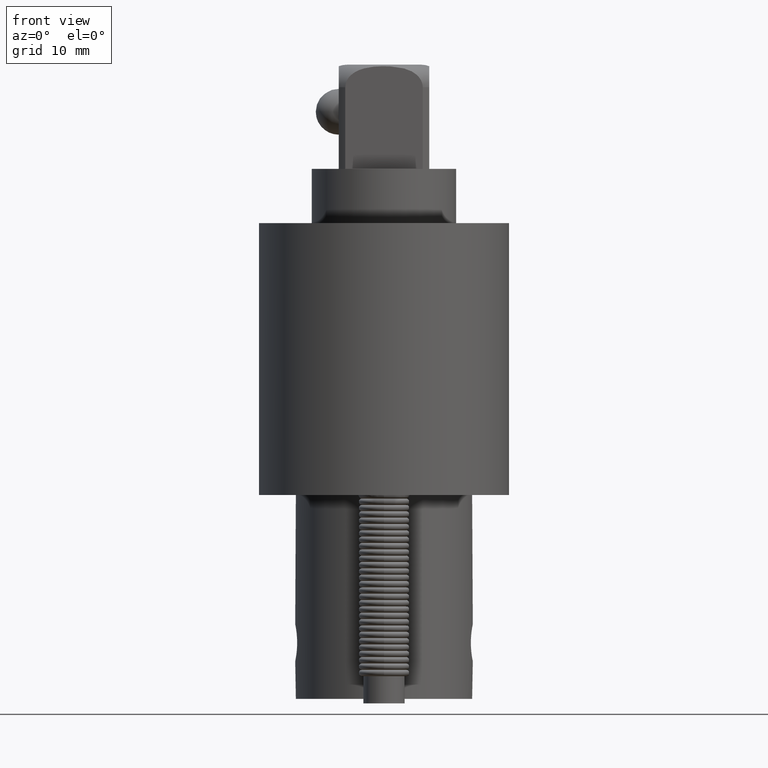
[diagram: clean part render]
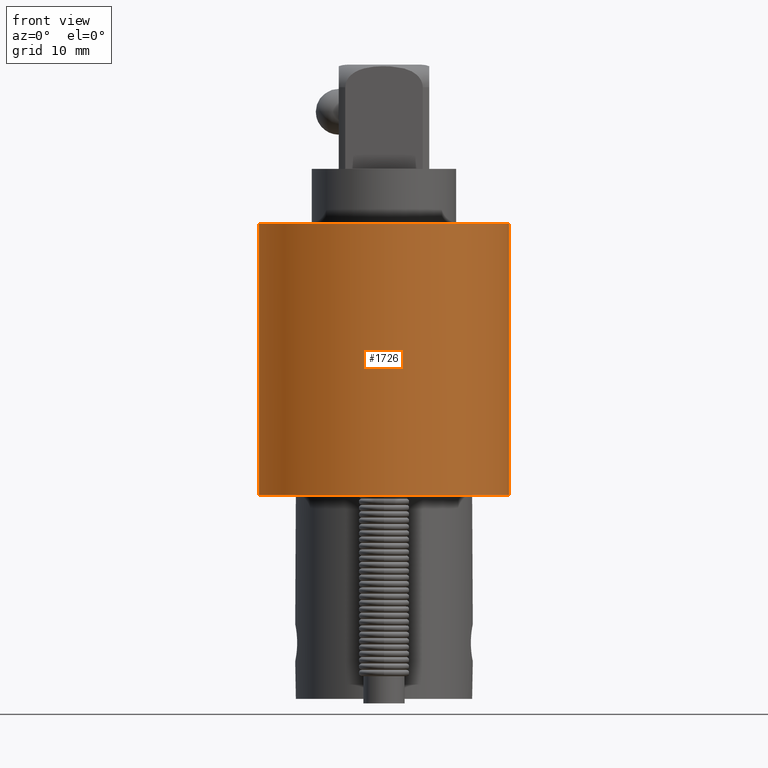
[diagram: same view with one face highlighted and labeled with its STEP entity id]
A machine part, front view. The second image highlights one B-rep face of the part: STEP entity #1726.
In plain terms, the highlighted cylindrical surface (bore or boss wall) has radius 17.526 mm, axis along (0, 0, 1).
Its self-contained STEP definition (entity closure, byte-faithful):
#1028=CARTESIAN_POINT('',(7.866735023022722,4.276221360788164,-0.512568193322597));
#1029=VERTEX_POINT('',#1028);
#1030=CARTESIAN_POINT('',(7.866735023022722,4.276221360788164,-0.512568193322597));
#1031=CARTESIAN_POINT('',(7.866735023022722,4.276221360788164,-0.505533382896451));
#1032=CARTESIAN_POINT('',(7.865328480737373,4.276340416186836,-0.498031788495372));
#1033=CARTESIAN_POINT('',(7.859612514831907,4.276770203085496,-0.484235464677875));
#1034=CARTESIAN_POINT('',(7.855303260804167,4.277074704172565,-0.477940471611150));
#1035=CARTESIAN_POINT('',(7.845362752050647,4.277646115557459,-0.467999962857630));
#1036=CARTESIAN_POINT('',(7.839067755748218,4.277950178508713,-0.463690703160497));
#1037=CARTESIAN_POINT('',(7.825271421223988,4.278378962891265,-0.457974732906364));
#1038=CARTESIAN_POINT('',(7.817769823093261,4.278497579026910,-0.456568193322597));
#1039=CARTESIAN_POINT('',(7.803700222952182,4.278497579026910,-0.456568193322597));
#1040=CARTESIAN_POINT('',(7.796198624821453,4.278378962891265,-0.457974732906364));
#1041=CARTESIAN_POINT('',(7.782402290297224,4.277950178508713,-0.463690703160498));
#1042=CARTESIAN_POINT('',(7.776107293994795,4.277646115557458,-0.467999962857630));
#1043=CARTESIAN_POINT('',(7.766166785241277,4.277074704172564,-0.477940471611150));
#1044=CARTESIAN_POINT('',(7.761857531213535,4.276770203085495,-0.484235464677875));
#1045=CARTESIAN_POINT('',(7.756141565308070,4.276340416186836,-0.498031788495372));
#1046=CARTESIAN_POINT('',(7.754735023022721,4.276221360788163,-0.505533382896451));
#1047=CARTESIAN_POINT('',(7.754735023022721,4.276221360788163,-0.519603003748744));
#1048=CARTESIAN_POINT('',(7.756141565308070,4.276340416186836,-0.527104598149823));
#1049=CARTESIAN_POINT('',(7.761857531213535,4.276770203085495,-0.540900921967320));
#1050=CARTESIAN_POINT('',(7.766166785241277,4.277074704172564,-0.547195915034045));
#1051=CARTESIAN_POINT('',(7.776107293994795,4.277646115557458,-0.557136423787566));
#1052=CARTESIAN_POINT('',(7.782402290297226,4.277950178508713,-0.561445683484698));
#1053=CARTESIAN_POINT('',(7.796198624821455,4.278378962891265,-0.567161653738832));
#1054=CARTESIAN_POINT('',(7.803700222952182,4.278497579026910,-0.568568193322598));
#1055=CARTESIAN_POINT('',(7.817769823093261,4.278497579026910,-0.568568193322598));
#1056=CARTESIAN_POINT('',(7.825271421223988,4.278378962891265,-0.567161653738832));
#1057=CARTESIAN_POINT('',(7.839067755748218,4.277950178508713,-0.561445683484698));
#1058=CARTESIAN_POINT('',(7.845362752050647,4.277646115557459,-0.557136423787566));
#1059=CARTESIAN_POINT('',(7.855303260804167,4.277074704172565,-0.547195915034045));
#1060=CARTESIAN_POINT('',(7.859612514831907,4.276770203085496,-0.540900921967321));
#1061=CARTESIAN_POINT('',(7.865328480737373,4.276340416186836,-0.527104598149823));
#1062=CARTESIAN_POINT('',(7.866735023022722,4.276221360788164,-0.519603003748744));
#1063=CARTESIAN_POINT('',(7.866735023022722,4.276221360788164,-0.512568193322598));
#1064=B_SPLINE_CURVE_WITH_KNOTS('',3,(#1030,#1031,#1032,#1033,#1034,#1035,#1036,#1037,#1038,#1039,#1040,#1041,#1042,#1043,#1044,#1045,#1046,#1047,#1048,#1049,#1050,#1051,#1052,#1053,#1054,#1055,#1056,#1057,#1058,#1059,#1060,#1061,#1062,#1063),.UNSPECIFIED.,.T.,.U.,(4,2,2,2,2,2,2,2,2,2,2,2,2,2,2,2,4),(0.0,0.053605255447234,0.107210510894468,0.160815687431973,0.214420863969479,0.268026040506984,0.321631217044489,0.375236472491723,0.428841727938957,0.482446983386191,0.536052238833425,0.589657415370930,0.643262591908436,0.696867768445941,0.750472944983447,0.804078200430681,0.857683455877914),.UNSPECIFIED.);
#1065=EDGE_CURVE('',#1029,#1029,#1064,.T.);
#1529=CARTESIAN_POINT('',(7.120735023022728,3.588497579026910,-0.687568193322600));
#1530=VERTEX_POINT('',#1529);
#1531=CARTESIAN_POINT('',(7.810735023022729,3.588497579026910,-0.687568193322600));
#1532=DIRECTION('',(0.0,0.0,-1.0));
#1533=DIRECTION('',(1.0,0.0,0.0));
#1534=AXIS2_PLACEMENT_3D('',#1531,#1532,#1533);
#1535=CIRCLE('',#1534,0.690000000000000);
#1536=EDGE_CURVE('',#1530,#1530,#1535,.T.);
#1704=CARTESIAN_POINT('',(7.810735023022729,3.588497579026910,-0.687568193322600));
#1705=DIRECTION('',(6.909722E-017,9.197389E-017,1.0));
#1706=DIRECTION('',(1.0,0.0,0.0));
#1707=AXIS2_PLACEMENT_3D('',#1704,#1705,#1706);
#1708=CYLINDRICAL_SURFACE('',#1707,0.690000000000000);
#1709=CARTESIAN_POINT('',(7.120735023022729,3.588497579026910,0.812431806677400));
#1710=VERTEX_POINT('',#1709);
#1711=CARTESIAN_POINT('',(7.810735023022729,3.588497579026910,0.812431806677400));
#1712=DIRECTION('',(0.0,0.0,-1.0));
#1713=DIRECTION('',(1.0,0.0,0.0));
#1714=AXIS2_PLACEMENT_3D('',#1711,#1712,#1713);
#1715=CIRCLE('',#1714,0.690000000000000);
#1716=EDGE_CURVE('',#1710,#1710,#1715,.T.);
#1717=ORIENTED_EDGE('',*,*,#1716,.T.);
#1718=EDGE_LOOP('',(#1717));
#1719=FACE_OUTER_BOUND('',#1718,.T.);
#1720=ORIENTED_EDGE('',*,*,#1065,.T.);
#1721=EDGE_LOOP('',(#1720));
#1722=FACE_BOUND('',#1721,.T.);
#1723=ORIENTED_EDGE('',*,*,#1536,.F.);
#1724=EDGE_LOOP('',(#1723));
#1725=FACE_BOUND('',#1724,.T.);
#1726=ADVANCED_FACE('',(#1719,#1722,#1725),#1708,.T.);